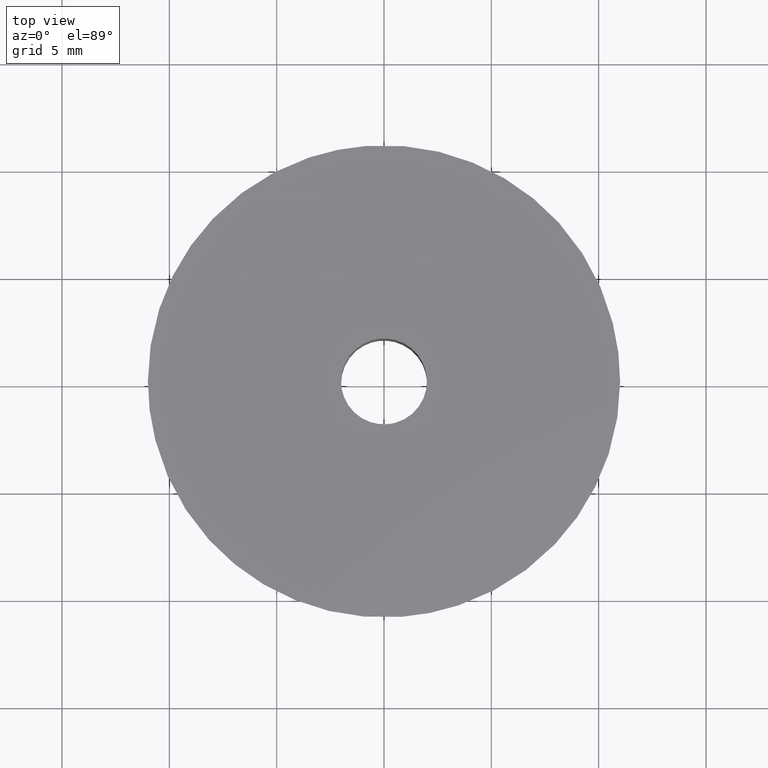
[diagram: clean part render]
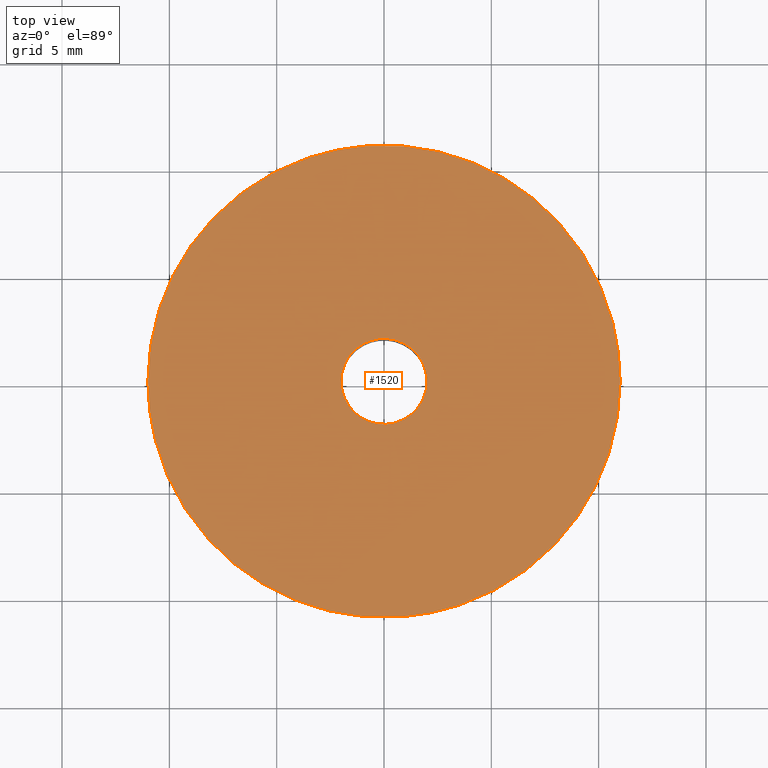
[diagram: same view with one face highlighted and labeled with its STEP entity id]
A machine part, top view. The second image highlights one B-rep face of the part: STEP entity #1520.
In plain terms, the highlighted face is a freeform B-spline surface patch.
Its self-contained STEP definition (entity closure, byte-faithful):
#553=CARTESIAN_POINT('',(0.122097079083763,-1.996269596842874,14.0));
#554=VERTEX_POINT('',#553);
#560=CARTESIAN_POINT('',(2.0,0.0,14.0));
#561=VERTEX_POINT('',#560);
#562=CARTESIAN_POINT('',(2.0,0.0,14.0));
#563=CARTESIAN_POINT('',(2.000000000000000,-1.881412133784864,14.000000000000005));
#564=CARTESIAN_POINT('',(0.122097079083763,-1.996269596842874,14.000000000000002));
#572=(BOUNDED_CURVE()B_SPLINE_CURVE(2,(#562,#563,#564),.UNSPECIFIED.,.F.,.U.)B_SPLINE_CURVE_WITH_KNOTS((3,3),(0.500000000000000,0.739332962239540),.UNSPECIFIED.)CURVE()GEOMETRIC_REPRESENTATION_ITEM()RATIONAL_B_SPLINE_CURVE((1.0,0.719603993286010,0.976072041667998))REPRESENTATION_ITEM(''));
#573=EDGE_CURVE('',#561,#554,#572,.T.);
#575=CARTESIAN_POINT('',(-0.236068469325456,1.986019052725913,14.0));
#576=VERTEX_POINT('',#575);
#577=CARTESIAN_POINT('',(-0.236068469325456,1.986019052725914,13.999999999999998));
#578=CARTESIAN_POINT('',(-0.118448239315886,2.000000000000000,14.000000000000005));
#579=CARTESIAN_POINT('',(0.0,2.0,14.0));
#580=CARTESIAN_POINT('',(2.000000000000000,2.000000000000000,13.999999999999998));
#581=CARTESIAN_POINT('',(2.0,0.0,14.0));
#589=(BOUNDED_CURVE()B_SPLINE_CURVE(2,(#577,#578,#579,#580,#581),.UNSPECIFIED.,.F.,.U.)B_SPLINE_CURVE_WITH_KNOTS((3,2,3),(0.229562473513612,0.250000000000000,0.500000000000000),.UNSPECIFIED.)CURVE()GEOMETRIC_REPRESENTATION_ITEM()RATIONAL_B_SPLINE_CURVE((0.956026754183903,0.976055948331267,1.0,0.707106781186548,1.0))REPRESENTATION_ITEM(''));
#590=EDGE_CURVE('',#576,#561,#589,.T.);
#634=CARTESIAN_POINT('',(-2.0,0.0,14.0));
#635=VERTEX_POINT('',#634);
#636=CARTESIAN_POINT('',(-2.0,0.0,14.0));
#637=CARTESIAN_POINT('',(-2.000000000000000,1.776349051881226,13.999999999999996));
#638=CARTESIAN_POINT('',(-0.236068469325457,1.986019052725913,14.0));
#646=(BOUNDED_CURVE()B_SPLINE_CURVE(2,(#636,#637,#638),.UNSPECIFIED.,.F.,.U.)B_SPLINE_CURVE_WITH_KNOTS((3,3),(0.0,0.229562473513612),.UNSPECIFIED.)CURVE()GEOMETRIC_REPRESENTATION_ITEM()RATIONAL_B_SPLINE_CURVE((1.0,0.731050832855281,0.956026754183903))REPRESENTATION_ITEM(''));
#647=EDGE_CURVE('',#635,#576,#646,.T.);
#649=CARTESIAN_POINT('',(0.122097079083763,-1.996269596842875,13.999999999999996));
#650=CARTESIAN_POINT('',(0.061105526611267,-2.0,13.999999999999998));
#651=CARTESIAN_POINT('',(0.0,-2.0,14.0));
#652=CARTESIAN_POINT('',(-2.000000000000000,-2.000000000000000,13.999999999999998));
#653=CARTESIAN_POINT('',(-2.0,0.0,14.0));
#661=(BOUNDED_CURVE()B_SPLINE_CURVE(2,(#649,#650,#651,#652,#653),.UNSPECIFIED.,.F.,.U.)B_SPLINE_CURVE_WITH_KNOTS((3,2,3),(0.739332962239540,0.750000000000000,1.0),.UNSPECIFIED.)CURVE()GEOMETRIC_REPRESENTATION_ITEM()RATIONAL_B_SPLINE_CURVE((0.976072041667997,0.987502787900536,1.0,0.707106781186548,1.0))REPRESENTATION_ITEM(''));
#662=EDGE_CURVE('',#554,#635,#661,.T.);
#1301=CARTESIAN_POINT('',(0.863043719665199,-10.966090825320739,13.999997598133641));
#1302=VERTEX_POINT('',#1301);
#1308=CARTESIAN_POINT('',(-11.0,0.0,14.0));
#1309=VERTEX_POINT('',#1308);
#1310=CARTESIAN_POINT('',(0.863043719665199,-10.966090825320734,13.999997598133639));
#1311=CARTESIAN_POINT('',(0.432187982809188,-10.999999664143953,13.999997641750518));
#1312=CARTESIAN_POINT('',(-0.000000025903385,-10.999999670863840,13.999997688934970));
#1313=CARTESIAN_POINT('',(-11.000000012442824,-10.999999841897772,13.999998889868149));
#1314=CARTESIAN_POINT('',(-11.0,0.0,14.0));
#1322=(BOUNDED_CURVE()B_SPLINE_CURVE(2,(#1310,#1311,#1312,#1313,#1314),.UNSPECIFIED.,.F.,.U.)B_SPLINE_CURVE_WITH_KNOTS((3,2,3),(0.736331399216205,0.750000000000000,1.0),.UNSPECIFIED.)CURVE()GEOMETRIC_REPRESENTATION_ITEM()RATIONAL_B_SPLINE_CURVE((0.969723561908021,0.983986238079033,1.0,0.707106781186548,1.0))REPRESENTATION_ITEM(''));
#1323=EDGE_CURVE('',#1302,#1309,#1322,.T.);
#1325=CARTESIAN_POINT('',(-0.863043719665198,10.966090825320739,13.999997598133641));
#1326=VERTEX_POINT('',#1325);
#1327=CARTESIAN_POINT('',(-11.0,0.0,14.0));
#1328=CARTESIAN_POINT('',(-10.999999986539438,10.168301102910700,13.999998799066827));
#1329=CARTESIAN_POINT('',(-0.863043719665198,10.966090825320736,13.999997598133641));
#1337=(BOUNDED_CURVE()B_SPLINE_CURVE(2,(#1327,#1328,#1329),.UNSPECIFIED.,.F.,.U.)B_SPLINE_CURVE_WITH_KNOTS((3,3),(0.0,0.236331399216205),.UNSPECIFIED.)CURVE()GEOMETRIC_REPRESENTATION_ITEM()RATIONAL_B_SPLINE_CURVE((1.0,0.723120543107515,0.969723561908021))REPRESENTATION_ITEM(''));
#1338=EDGE_CURVE('',#1309,#1326,#1337,.T.);
#1384=CARTESIAN_POINT('',(11.0,0.0,14.0));
#1385=VERTEX_POINT('',#1384);
#1386=CARTESIAN_POINT('',(-0.863043719665198,10.966090825320736,13.999997598133641));
#1387=CARTESIAN_POINT('',(-0.432187982809186,10.999999664143953,13.999997641750518));
#1388=CARTESIAN_POINT('',(0.000000025903387,10.999999670863840,13.999997688934970));
#1389=CARTESIAN_POINT('',(11.000000012442825,10.999999841897772,13.999998889868145));
#1390=CARTESIAN_POINT('',(11.0,0.0,14.0));
#1398=(BOUNDED_CURVE()B_SPLINE_CURVE(2,(#1386,#1387,#1388,#1389,#1390),.UNSPECIFIED.,.F.,.U.)B_SPLINE_CURVE_WITH_KNOTS((3,2,3),(0.236331399216205,0.250000000000000,0.500000000000000),.UNSPECIFIED.)CURVE()GEOMETRIC_REPRESENTATION_ITEM()RATIONAL_B_SPLINE_CURVE((0.969723561908021,0.983986238079033,1.0,0.707106781186548,1.0))REPRESENTATION_ITEM(''));
#1399=EDGE_CURVE('',#1326,#1385,#1398,.T.);
#1401=CARTESIAN_POINT('',(11.0,0.0,14.0));
#1402=CARTESIAN_POINT('',(10.999999986539441,-10.168301102910700,13.999998799066827));
#1403=CARTESIAN_POINT('',(0.863043719665199,-10.966090825320734,13.999997598133639));
#1411=(BOUNDED_CURVE()B_SPLINE_CURVE(2,(#1401,#1402,#1403),.UNSPECIFIED.,.F.,.U.)B_SPLINE_CURVE_WITH_KNOTS((3,3),(0.500000000000000,0.736331399216205),.UNSPECIFIED.)CURVE()GEOMETRIC_REPRESENTATION_ITEM()RATIONAL_B_SPLINE_CURVE((1.0,0.723120543107515,0.969723561908021))REPRESENTATION_ITEM(''));
#1412=EDGE_CURVE('',#1385,#1302,#1411,.T.);
#1503=CARTESIAN_POINT('',(12.098899957359730,-12.095541168794631,14.0));
#1504=CARTESIAN_POINT('',(-12.098900547445711,-12.095541168794631,14.0));
#1505=CARTESIAN_POINT('',(12.098899957359730,12.095541168794631,14.0));
#1506=CARTESIAN_POINT('',(-12.098900547445711,12.095541168794631,14.0));
#1507=B_SPLINE_SURFACE_WITH_KNOTS('',1,1,((#1503,#1505),(#1504,#1506)),.UNSPECIFIED.,.F.,.F.,.U.,(2,2),(2,2),(0.0,24.197800504805439),(0.0,24.191082337589268),.UNSPECIFIED.);
#1508=ORIENTED_EDGE('',*,*,#1323,.F.);
#1509=ORIENTED_EDGE('',*,*,#1412,.F.);
#1510=ORIENTED_EDGE('',*,*,#1399,.F.);
#1511=ORIENTED_EDGE('',*,*,#1338,.F.);
#1512=EDGE_LOOP('',(#1508,#1509,#1510,#1511));
#1513=FACE_OUTER_BOUND('',#1512,.T.);
#1514=ORIENTED_EDGE('',*,*,#573,.T.);
#1515=ORIENTED_EDGE('',*,*,#662,.T.);
#1516=ORIENTED_EDGE('',*,*,#647,.T.);
#1517=ORIENTED_EDGE('',*,*,#590,.T.);
#1518=EDGE_LOOP('',(#1514,#1515,#1516,#1517));
#1519=FACE_BOUND('',#1518,.T.);
#1520=ADVANCED_FACE('',(#1513,#1519),#1507,.F.);